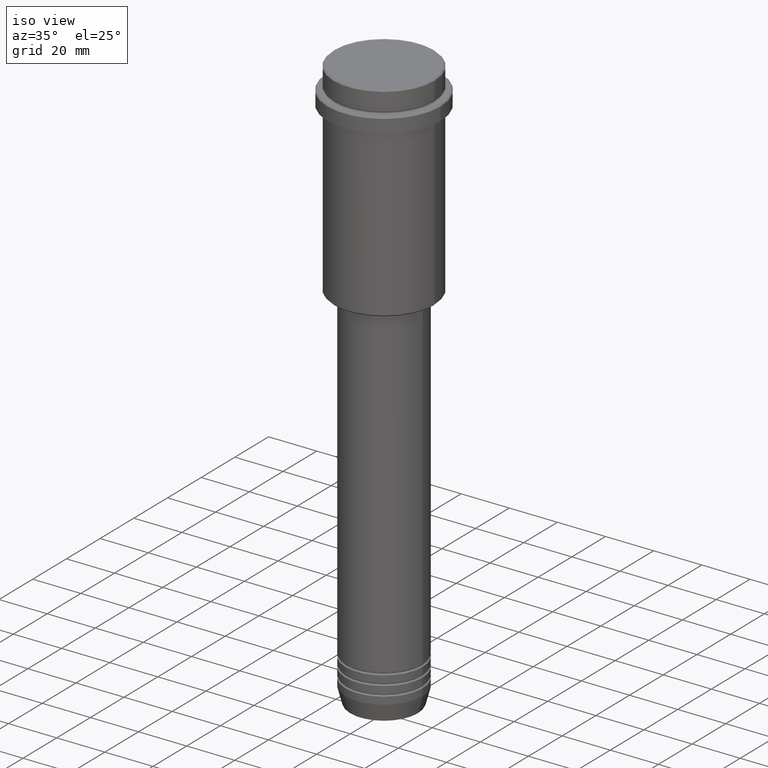
[diagram: clean part render]
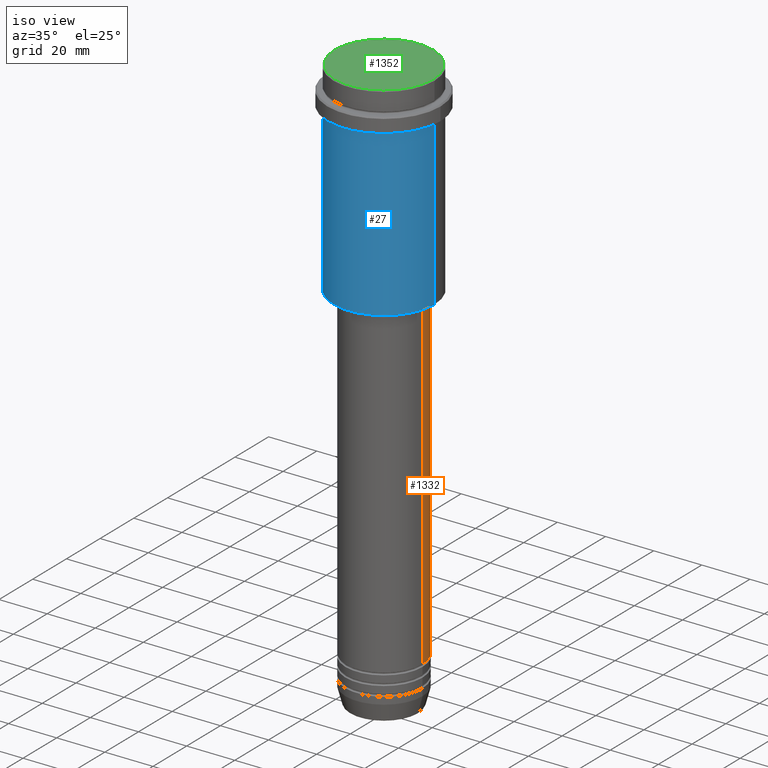
[diagram: same view with three faces highlighted in distinct colors, each labeled with its STEP entity id]
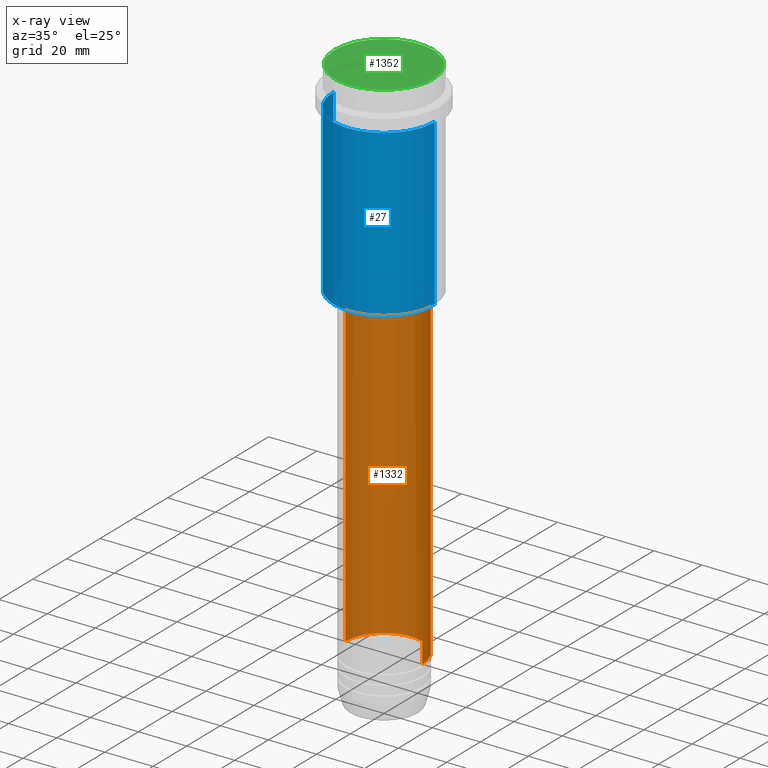
[diagram: x-ray of the same camera — body ghosted, the three highlighted faces saturated]
A machine part, iso view with three faces highlighted in distinct colors.
The next image is the same camera in x-ray (body ghosted, the three faces saturated) — at least one of them is partly hidden behind the body in this view.
Their STEP definitions:

[orange] entity #1332 — the highlighted cylindrical surface (partial cylindrical patch) has radius 16 mm, axis along (-0, -0, 1).
#32 = ORIENTED_EDGE ( 'NONE', *, *, #1152, .F. ) ;
#59 = FACE_OUTER_BOUND ( 'NONE', #1333, .T. ) ;
#92 = ORIENTED_EDGE ( 'NONE', *, *, #131, .T. ) ;
#112 = LINE ( 'NONE', #543, #354 ) ;
#126 = CIRCLE ( 'NONE', #954, 16.00000000000000000 ) ;
#130 = DIRECTION ( 'NONE',  ( 1.000000000000000000, 0.000000000000000000, 0.000000000000000000 ) ) ;
#131 = EDGE_CURVE ( 'NONE', #1166, #891, #126, .T. ) ;
#135 = DIRECTION ( 'NONE',  ( -0.000000000000000000, -0.000000000000000000, 1.000000000000000000 ) ) ;
#148 = CARTESIAN_POINT ( 'NONE',  ( 0.000000000000000000, 0.000000000000000000, -220.9999999999998579 ) ) ;
#227 = CARTESIAN_POINT ( 'NONE',  ( -16.00000000000000355, 1.959434878635765526E-15, -86.00000000000000000 ) ) ;
#258 = ORIENTED_EDGE ( 'NONE', *, *, #721, .F. ) ;
#273 = CYLINDRICAL_SURFACE ( 'NONE', #1255, 16.00000000000000000 ) ;
#354 = VECTOR ( 'NONE', #135, 1000.000000000000000 ) ;
#374 = DIRECTION ( 'NONE',  ( -0.000000000000000000, -0.000000000000000000, 1.000000000000000000 ) ) ;
#380 = DIRECTION ( 'NONE',  ( 1.000000000000000000, 0.000000000000000000, 0.000000000000000000 ) ) ;
#396 = VERTEX_POINT ( 'NONE', #1245 ) ;
#397 = DIRECTION ( 'NONE',  ( -0.000000000000000000, -0.000000000000000000, 1.000000000000000000 ) ) ;
#519 = CARTESIAN_POINT ( 'NONE',  ( 16.00000000000000000, 0.000000000000000000, 0.000000000000000000 ) ) ;
#543 = CARTESIAN_POINT ( 'NONE',  ( -16.00000000000000000, 1.959434878635765131E-15, 0.000000000000000000 ) ) ;
#604 = CARTESIAN_POINT ( 'NONE',  ( 0.000000000000000000, 0.000000000000000000, -86.00000000000000000 ) ) ;
#635 = LINE ( 'NONE', #519, #1251 ) ;
#721 = EDGE_CURVE ( 'NONE', #396, #1230, #1319, .T. ) ;
#746 = CARTESIAN_POINT ( 'NONE',  ( 16.00000000000000000, 0.000000000000000000, -220.9999999999998579 ) ) ;
#819 = DIRECTION ( 'NONE',  ( -0.000000000000000000, -0.000000000000000000, 1.000000000000000000 ) ) ;
#857 = EDGE_CURVE ( 'NONE', #891, #1230, #112, .T. ) ;
#891 = VERTEX_POINT ( 'NONE', #993 ) ;
#954 = AXIS2_PLACEMENT_3D ( 'NONE', #148, #374, #380 ) ;
#962 = ORIENTED_EDGE ( 'NONE', *, *, #857, .T. ) ;
#993 = CARTESIAN_POINT ( 'NONE',  ( -16.00000000000000000, 1.959434878635765131E-15, -220.9999999999998579 ) ) ;
#1143 = CARTESIAN_POINT ( 'NONE',  ( 0.000000000000000000, 0.000000000000000000, 0.000000000000000000 ) ) ;
#1152 = EDGE_CURVE ( 'NONE', #1166, #396, #635, .T. ) ;
#1166 = VERTEX_POINT ( 'NONE', #746 ) ;
#1230 = VERTEX_POINT ( 'NONE', #227 ) ;
#1245 = CARTESIAN_POINT ( 'NONE',  ( 16.00000000000000355, 0.000000000000000000, -86.00000000000000000 ) ) ;
#1251 = VECTOR ( 'NONE', #1403, 1000.000000000000000 ) ;
#1255 = AXIS2_PLACEMENT_3D ( 'NONE', #1143, #819, #130 ) ;
#1319 = CIRCLE ( 'NONE', #1389, 16.00000000000000355 ) ;
#1332 = ADVANCED_FACE ( 'NONE', ( #59 ), #273, .T. ) ;
#1333 = EDGE_LOOP ( 'NONE', ( #92, #962, #258, #32 ) ) ;
#1389 = AXIS2_PLACEMENT_3D ( 'NONE', #604, #397, #1398 ) ;
#1398 = DIRECTION ( 'NONE',  ( 1.000000000000000000, 0.000000000000000000, 0.000000000000000000 ) ) ;
#1403 = DIRECTION ( 'NONE',  ( -0.000000000000000000, -0.000000000000000000, 1.000000000000000000 ) ) ;

[blue] entity #27 — the highlighted cylindrical surface (partial cylindrical patch) has radius 21 mm, axis along (-0, -0, 1).
#27 = ADVANCED_FACE ( 'NONE', ( #1154 ), #924, .T. ) ;
#35 = LINE ( 'NONE', #917, #1014 ) ;
#90 = DIRECTION ( 'NONE',  ( -0.000000000000000000, -0.000000000000000000, 1.000000000000000000 ) ) ;
#228 = ORIENTED_EDGE ( 'NONE', *, *, #286, .F. ) ;
#249 = DIRECTION ( 'NONE',  ( -0.000000000000000000, -0.000000000000000000, 1.000000000000000000 ) ) ;
#286 = EDGE_CURVE ( 'NONE', #1149, #1262, #674, .T. ) ;
#321 = EDGE_CURVE ( 'NONE', #747, #1208, #1252, .T. ) ;
#435 = DIRECTION ( 'NONE',  ( -0.000000000000000000, -0.000000000000000000, 1.000000000000000000 ) ) ;
#477 = ORIENTED_EDGE ( 'NONE', *, *, #890, .F. ) ;
#487 = DIRECTION ( 'NONE',  ( 1.000000000000000000, 0.000000000000000000, 0.000000000000000000 ) ) ;
#504 = LINE ( 'NONE', #1406, #1163 ) ;
#512 = AXIS2_PLACEMENT_3D ( 'NONE', #1362, #249, #487 ) ;
#612 = AXIS2_PLACEMENT_3D ( 'NONE', #1331, #435, #972 ) ;
#632 = AXIS2_PLACEMENT_3D ( 'NONE', #1317, #761, #1211 ) ;
#674 = CIRCLE ( 'NONE', #612, 21.00000000000000000 ) ;
#723 = ORIENTED_EDGE ( 'NONE', *, *, #975, .T. ) ;
#747 = VERTEX_POINT ( 'NONE', #1156 ) ;
#761 = DIRECTION ( 'NONE',  ( -0.000000000000000000, -0.000000000000000000, 1.000000000000000000 ) ) ;
#851 = CARTESIAN_POINT ( 'NONE',  ( 21.00000000000000000, 0.000000000000000000, -16.00000000000000355 ) ) ;
#890 = EDGE_CURVE ( 'NONE', #747, #1149, #35, .T. ) ;
#917 = CARTESIAN_POINT ( 'NONE',  ( -21.00000000000000000, 2.571758278209441661E-15, 0.000000000000000000 ) ) ;
#924 = CYLINDRICAL_SURFACE ( 'NONE', #512, 21.00000000000000000 ) ;
#972 = DIRECTION ( 'NONE',  ( 1.000000000000000000, 0.000000000000000000, 0.000000000000000000 ) ) ;
#975 = EDGE_CURVE ( 'NONE', #1208, #1262, #504, .T. ) ;
#1014 = VECTOR ( 'NONE', #1357, 1000.000000000000000 ) ;
#1017 = EDGE_LOOP ( 'NONE', ( #477, #1056, #723, #228 ) ) ;
#1040 = CARTESIAN_POINT ( 'NONE',  ( -21.00000000000000000, 2.571758278209441661E-15, -16.00000000000000355 ) ) ;
#1056 = ORIENTED_EDGE ( 'NONE', *, *, #321, .T. ) ;
#1149 = VERTEX_POINT ( 'NONE', #1040 ) ;
#1154 = FACE_OUTER_BOUND ( 'NONE', #1017, .T. ) ;
#1156 = CARTESIAN_POINT ( 'NONE',  ( -21.00000000000000000, 2.571758278209441661E-15, -84.49999999999995737 ) ) ;
#1163 = VECTOR ( 'NONE', #90, 1000.000000000000000 ) ;
#1208 = VERTEX_POINT ( 'NONE', #1345 ) ;
#1211 = DIRECTION ( 'NONE',  ( -1.000000000000000000, 0.000000000000000000, 0.000000000000000000 ) ) ;
#1252 = CIRCLE ( 'NONE', #632, 21.00000000000000000 ) ;
#1262 = VERTEX_POINT ( 'NONE', #851 ) ;
#1317 = CARTESIAN_POINT ( 'NONE',  ( 0.000000000000000000, 0.000000000000000000, -84.49999999999995737 ) ) ;
#1331 = CARTESIAN_POINT ( 'NONE',  ( 0.000000000000000000, 0.000000000000000000, -16.00000000000000355 ) ) ;
#1345 = CARTESIAN_POINT ( 'NONE',  ( 21.00000000000000000, 0.000000000000000000, -84.49999999999995737 ) ) ;
#1357 = DIRECTION ( 'NONE',  ( -0.000000000000000000, -0.000000000000000000, 1.000000000000000000 ) ) ;
#1362 = CARTESIAN_POINT ( 'NONE',  ( 0.000000000000000000, 0.000000000000000000, 0.000000000000000000 ) ) ;
#1406 = CARTESIAN_POINT ( 'NONE',  ( 21.00000000000000000, 0.000000000000000000, 0.000000000000000000 ) ) ;

[green] entity #1352 — the highlighted planar face has unit normal (0, -0, 1).
#116 = EDGE_LOOP ( 'NONE', ( #987, #832 ) ) ;
#191 = CARTESIAN_POINT ( 'NONE',  ( 20.49999999999993605, 2.541142108230753930E-15, 0.000000000000000000 ) ) ;
#263 = DIRECTION ( 'NONE',  ( 0.000000000000000000, -0.000000000000000000, 1.000000000000000000 ) ) ;
#313 = AXIS2_PLACEMENT_3D ( 'NONE', #598, #1169, #393 ) ;
#393 = DIRECTION ( 'NONE',  ( 1.000000000000000000, 0.000000000000000000, 0.000000000000000000 ) ) ;
#485 = DIRECTION ( 'NONE',  ( 1.000000000000000000, 0.000000000000000000, 0.000000000000000000 ) ) ;
#559 = AXIS2_PLACEMENT_3D ( 'NONE', #763, #1001, #1094 ) ;
#598 = CARTESIAN_POINT ( 'NONE',  ( 0.000000000000000000, 0.000000000000000000, 0.000000000000000000 ) ) ;
#602 = PLANE ( 'NONE',  #614 ) ;
#614 = AXIS2_PLACEMENT_3D ( 'NONE', #894, #263, #485 ) ;
#763 = CARTESIAN_POINT ( 'NONE',  ( 0.000000000000000000, 0.000000000000000000, 0.000000000000000000 ) ) ;
#805 = CIRCLE ( 'NONE', #313, 20.49999999999993605 ) ;
#832 = ORIENTED_EDGE ( 'NONE', *, *, #1030, .T. ) ;
#879 = CIRCLE ( 'NONE', #559, 20.49999999999993605 ) ;
#894 = CARTESIAN_POINT ( 'NONE',  ( 0.000000000000000000, 0.000000000000000000, 0.000000000000000000 ) ) ;
#964 = VERTEX_POINT ( 'NONE', #191 ) ;
#987 = ORIENTED_EDGE ( 'NONE', *, *, #1408, .T. ) ;
#1001 = DIRECTION ( 'NONE',  ( -0.000000000000000000, -0.000000000000000000, 1.000000000000000000 ) ) ;
#1030 = EDGE_CURVE ( 'NONE', #964, #1307, #805, .T. ) ;
#1094 = DIRECTION ( 'NONE',  ( 1.000000000000000000, 0.000000000000000000, 0.000000000000000000 ) ) ;
#1169 = DIRECTION ( 'NONE',  ( -0.000000000000000000, -0.000000000000000000, 1.000000000000000000 ) ) ;
#1264 = FACE_OUTER_BOUND ( 'NONE', #116, .T. ) ;
#1307 = VERTEX_POINT ( 'NONE', #1329 ) ;
#1329 = CARTESIAN_POINT ( 'NONE',  ( -20.49999999999993605, 0.000000000000000000, 0.000000000000000000 ) ) ;
#1352 = ADVANCED_FACE ( 'NONE', ( #1264 ), #602, .T. ) ;
#1408 = EDGE_CURVE ( 'NONE', #1307, #964, #879, .T. ) ;